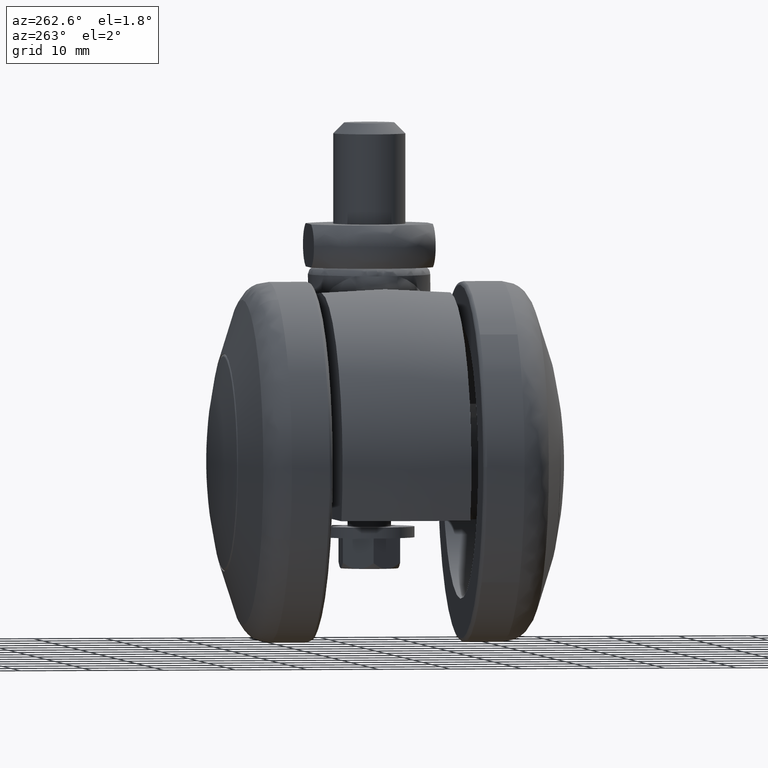
[diagram: clean part render]
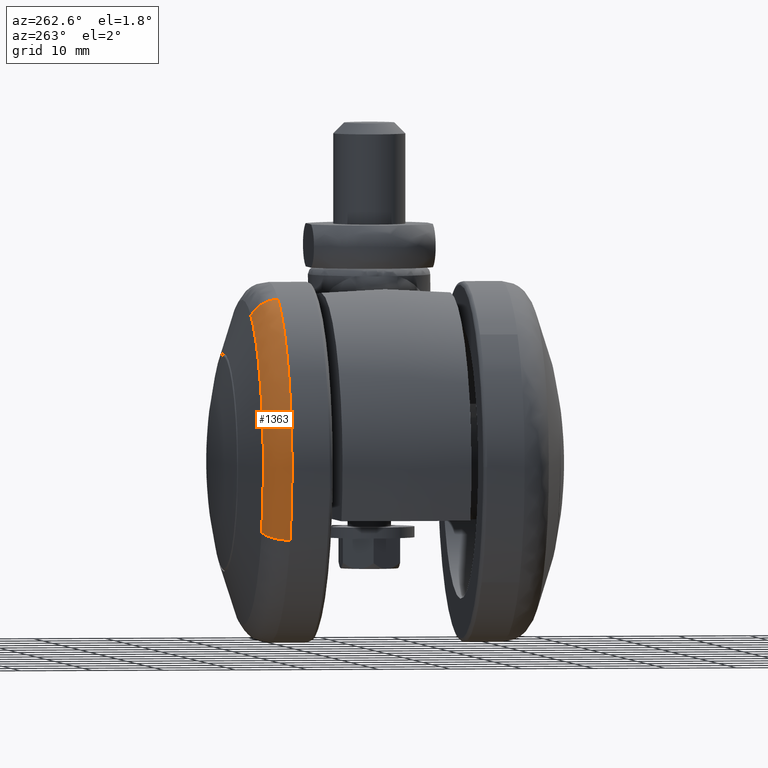
[diagram: same view with one face highlighted and labeled with its STEP entity id]
A machine part, auxiliary view. The second image highlights one B-rep face of the part: STEP entity #1363.
In plain terms, the highlighted face is a freeform B-spline surface patch.
Its self-contained STEP definition (entity closure, byte-faithful):
#950=CARTESIAN_POINT('',(10.072660892843579,-16.249585000111079,22.881029315522049));
#951=VERTEX_POINT('',#950);
#965=CARTESIAN_POINT('',(22.881029315522049,-16.249585000111079,-10.072660892843579));
#966=VERTEX_POINT('',#965);
#967=CARTESIAN_POINT('',(22.881029315522049,-16.249585000111079,-10.072660892843576));
#968=CARTESIAN_POINT('',(25.0,-16.249584999999946,-5.259212801415504));
#969=CARTESIAN_POINT('',(25.0,-16.249584999999950,1.789254E-015));
#970=CARTESIAN_POINT('',(24.999999999999996,-16.249584999999950,16.309732946573114));
#971=CARTESIAN_POINT('',(10.072660892843581,-16.249585000111075,22.881029315522053));
#979=(BOUNDED_CURVE()B_SPLINE_CURVE(2,(#967,#968,#969,#970,#971),.UNSPECIFIED.,.F.,.U.)B_SPLINE_CURVE_WITH_KNOTS((3,2,3),(0.181585009861425,0.250000000000000,0.431585009861425),.UNSPECIFIED.)CURVE()GEOMETRIC_REPRESENTATION_ITEM()RATIONAL_B_SPLINE_CURVE((0.883563120518119,0.919846853292888,1.0,0.787259927893659,0.883563120518120))REPRESENTATION_ITEM(''));
#980=EDGE_CURVE('',#966,#951,#979,.T.);
#1243=CARTESIAN_POINT('',(9.087749509929518,-19.934754244706831,20.643707274505701));
#1244=VERTEX_POINT('',#1243);
#1260=CARTESIAN_POINT('',(10.072660892843581,-16.249585000111075,22.881029315522049));
#1261=CARTESIAN_POINT('',(10.072660892782158,-18.902941115576056,22.881029315387995));
#1262=CARTESIAN_POINT('',(9.087749509929518,-19.934754244706827,20.643707274505704));
#1270=(BOUNDED_CURVE()B_SPLINE_CURVE(2,(#1260,#1261,#1262),.UNSPECIFIED.,.F.,.U.)B_SPLINE_CURVE_WITH_KNOTS((3,3),(-1.658407430936006,-0.338347024310011),.UNSPECIFIED.)CURVE()GEOMETRIC_REPRESENTATION_ITEM()RATIONAL_B_SPLINE_CURVE((0.902190447933897,0.752128648692594,0.902930160553191))REPRESENTATION_ITEM(''));
#1271=EDGE_CURVE('',#951,#1244,#1270,.T.);
#1278=CARTESIAN_POINT('',(20.643707274505690,-19.934754244706831,-9.087749509929516));
#1279=VERTEX_POINT('',#1278);
#1280=CARTESIAN_POINT('',(22.881029315522049,-16.249585000111075,-10.072660892843576));
#1281=CARTESIAN_POINT('',(22.881029315387995,-18.902941115576056,-10.072660892782155));
#1282=CARTESIAN_POINT('',(20.643707274505694,-19.934754244706827,-9.087749509929516));
#1290=(BOUNDED_CURVE()B_SPLINE_CURVE(2,(#1280,#1281,#1282),.UNSPECIFIED.,.F.,.U.)B_SPLINE_CURVE_WITH_KNOTS((3,3),(-1.658407430936006,-0.338347024310011),.UNSPECIFIED.)CURVE()GEOMETRIC_REPRESENTATION_ITEM()RATIONAL_B_SPLINE_CURVE((0.902190447933897,0.752128648692594,0.902930160553191))REPRESENTATION_ITEM(''));
#1291=EDGE_CURVE('',#966,#1279,#1290,.T.);
#1326=CARTESIAN_POINT('',(22.875538375698529,-16.030588257595063,-10.070243677511272));
#1327=CARTESIAN_POINT('',(32.945782053209797,-16.030588257595063,12.805294698187254));
#1328=CARTESIAN_POINT('',(10.070243677511275,-16.030588257595063,22.875538375698540));
#1329=CARTESIAN_POINT('',(23.024910674928908,-19.007082063957636,-10.136000182438734));
#1330=CARTESIAN_POINT('',(33.160910857367632,-19.007082063957629,12.888910492490167));
#1331=CARTESIAN_POINT('',(10.136000182438741,-19.007082063957636,23.024910674928908));
#1332=CARTESIAN_POINT('',(20.457073915741994,-20.014325103666398,-9.005589983369774));
#1333=CARTESIAN_POINT('',(29.462663899111767,-20.014325103666398,11.451483932372218));
#1334=CARTESIAN_POINT('',(9.005589983369779,-20.014325103666398,20.457073915742008));
#1342=(BOUNDED_SURFACE()B_SPLINE_SURFACE(2,2,((#1326,#1329,#1332),(#1327,#1330,#1333),(#1328,#1331,#1334)),.UNSPECIFIED.,.F.,.F.,.U.)B_SPLINE_SURFACE_WITH_KNOTS((3,3),(3,3),(0.0,41.411416030013413),(0.0,5.306212698356131),.UNSPECIFIED.)GEOMETRIC_REPRESENTATION_ITEM()RATIONAL_B_SPLINE_SURFACE(((0.917932346626404,0.736349806455484,0.918745946287786),(0.649076186970011,0.520677941470074,0.649651488807745),(0.917932346626404,0.736349806455484,0.918745946287786)))REPRESENTATION_ITEM('')SURFACE());
#1343=CARTESIAN_POINT('',(20.643707274505697,-19.934754244706827,-9.087749509929516));
#1344=CARTESIAN_POINT('',(22.555483695890050,-19.934754434471508,-4.744963543888342));
#1345=CARTESIAN_POINT('',(22.555483695890050,-19.934754434471500,1.789254E-015));
#1346=CARTESIAN_POINT('',(22.555483695890040,-19.934754434471504,14.714956622339097));
#1347=CARTESIAN_POINT('',(9.087749509929518,-19.934754244706831,20.643707274505704));
#1355=(BOUNDED_CURVE()B_SPLINE_CURVE(2,(#1343,#1344,#1345,#1346,#1347),.UNSPECIFIED.,.F.,.U.)B_SPLINE_CURVE_WITH_KNOTS((3,2,3),(0.181585009860542,0.250000000000000,0.431585009860542),.UNSPECIFIED.)CURVE()GEOMETRIC_REPRESENTATION_ITEM()RATIONAL_B_SPLINE_CURVE((0.883563120517182,0.919846853291854,1.0,0.787259927894694,0.883563120517183))REPRESENTATION_ITEM(''));
#1356=EDGE_CURVE('',#1279,#1244,#1355,.T.);
#1357=ORIENTED_EDGE('',*,*,#1356,.F.);
#1358=ORIENTED_EDGE('',*,*,#1291,.F.);
#1359=ORIENTED_EDGE('',*,*,#980,.T.);
#1360=ORIENTED_EDGE('',*,*,#1271,.T.);
#1361=EDGE_LOOP('',(#1357,#1358,#1359,#1360));
#1362=FACE_OUTER_BOUND('',#1361,.T.);
#1363=ADVANCED_FACE('',(#1362),#1342,.T.);